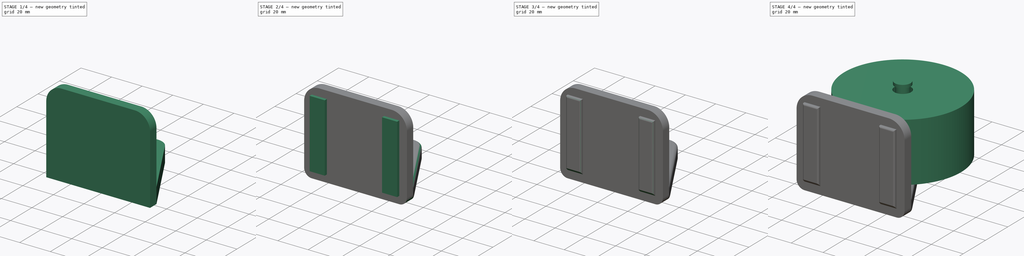
[diagram: build sequence overview — one tinted view per stage of 4, left to right]
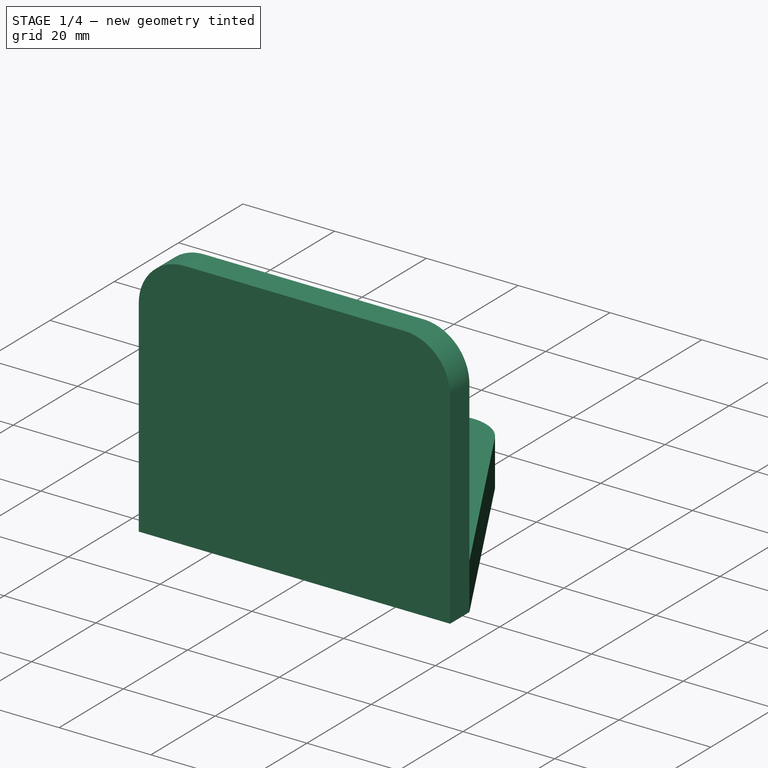
[diagram: stage 1 of 4 — iso view after this stage's code; geometry added in this stage tinted green]
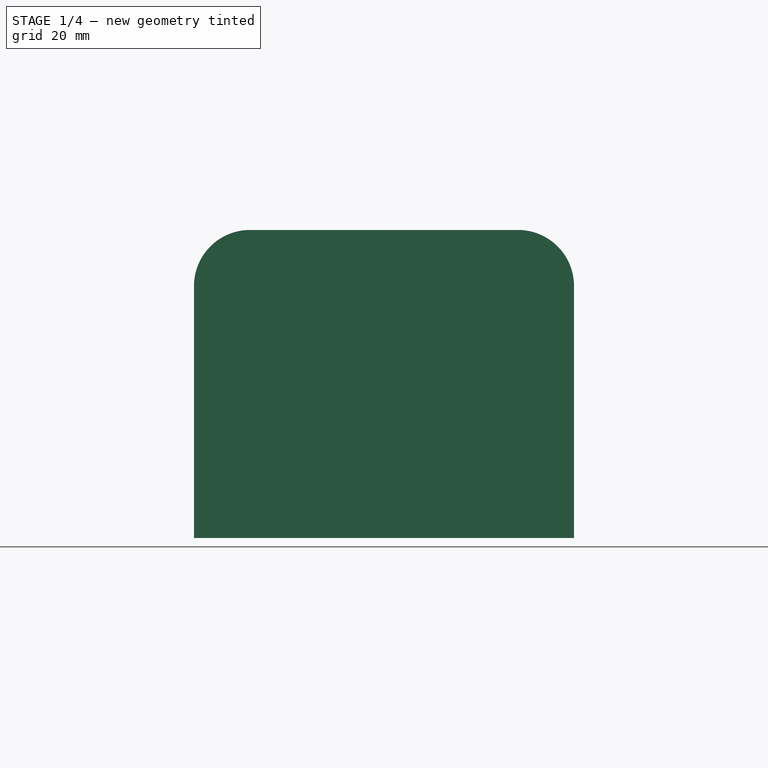
[diagram: stage 1 of 4 — front view after this stage's code; geometry added in this stage tinted green]
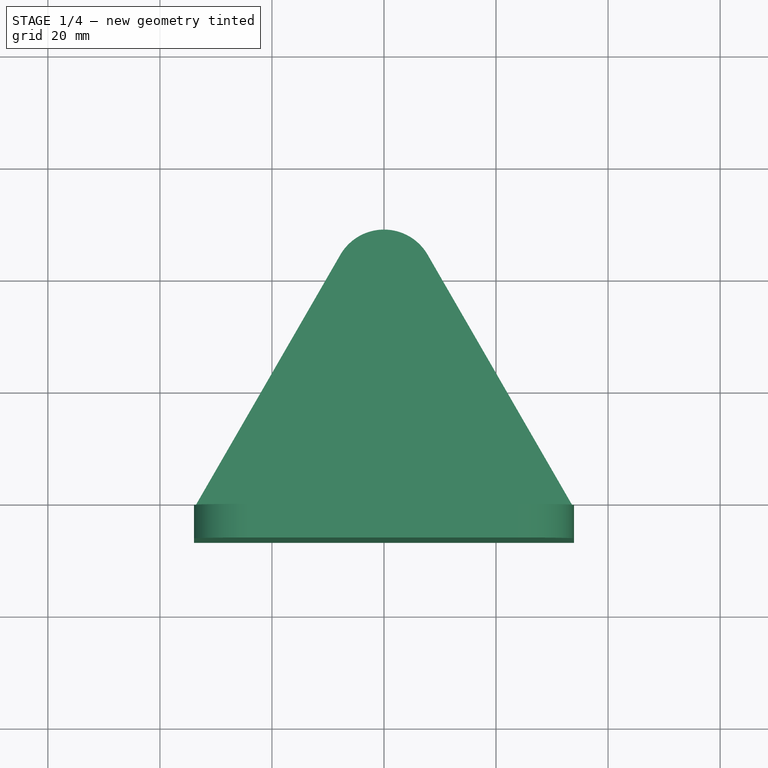
[diagram: stage 1 of 4 — top view after this stage's code; geometry added in this stage tinted green]
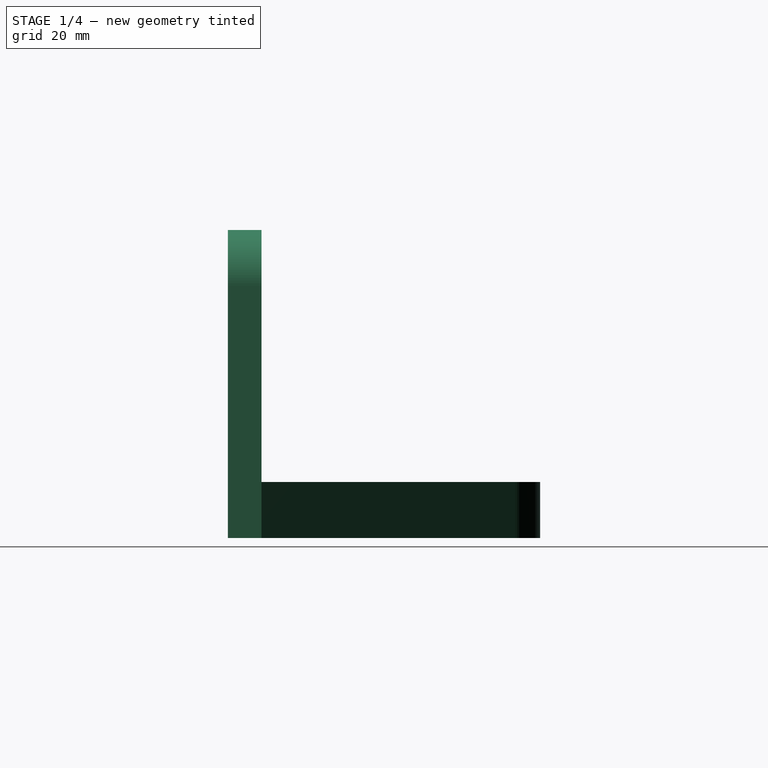
[diagram: stage 1 of 4 — right view after this stage's code; geometry added in this stage tinted green]
FCSTD DOCUMENT  (FreeCAD 0.17RUnknown)
Label: test106_solderholder
License: All rights reserved
LicenseURL: http://en.wikipedia.org/wiki/All_rights_reserved
objects: Sketcher::SketchObject×6, PartDesign::Pad×6, PartDesign::Fillet×4, PartDesign::Body×2, PartDesign::Draft×1
note: 25 computed .brp shape members not serialized (recipe doc carries the construction recipe); baked Part::Feature solids carry a one-line shape summary decoded from their .brp

FEATURE [PartDesign::Body] Body  label="Solder"
  Group = -> [Pad]
  Origin = -> Origin
  Placement = pos=(0,0,2) rot=(0,0,1;0rad)
  Tip = -> Pad
FEATURE [Sketcher::SketchObject] Sketch003
  ExternalGeometry = -> [Sketch001]
  MapMode = 5
  Placement = pos=(0,0,0) rot=(0,1,0;3.14159rad)
  Support = -> [XY_Plane002]
  sketch-geometry (9):
    g0: ArcOfCircle CenterX=0 CenterY=0 CenterZ=0 NormalX=0 NormalY=0 NormalZ=1 AngleXU=0 Radius=9 StartAngle=0.523599 EndAngle=2.61799
    g1: LineSegment StartX=-7.79423 StartY=4.5 StartZ=0 EndX=-33.9192 EndY=-40.75 EndZ=0
    g2: LineSegment StartX=7.79423 StartY=4.5 StartZ=0 EndX=33.9192 EndY=-40.75 EndZ=0
    g3: GeomPoint X=0 Y=4 Z=0
    g4: GeomPoint X=8.159e-09 Y=9 Z=0
    g5: GeomPoint X=0 Y=-36.75 Z=0
    g6: LineSegment StartX=-33.9192 StartY=-46.75 StartZ=0 EndX=33.9192 EndY=-46.75 EndZ=0
    g7: LineSegment StartX=33.9192 StartY=-46.75 StartZ=0 EndX=33.9192 EndY=-40.75 EndZ=0
    g8: LineSegment StartX=-33.9192 StartY=-40.75 StartZ=0 EndX=-33.9192 EndY=-46.75 EndZ=0
  constraints (22):
    c: DistanceY(g3,g4) = 5
    c: Angle(g0) = 2.0944
    c: Tangent(g2,g0)
    c: Tangent(g1,g0)
    c: Coincident(g6,g7)
    c: Horizontal(g6)
    c: Vertical(g7)
    c: Coincident(g2,g7)
    c: Equal(g1,g2)
    c: DistanceY(g2,g5) = 4
    c: Coincident(g2,g0)
    c: PointOnObject(g5,g-4)
    c: PointOnObject(g5,g-2)
    c: Coincident(g0,g-1)
    c: Coincident(g1,g0)
    c: DistanceY(g7,g7) = 6
    c: PointOnObject(g4,g0)
    c: PointOnObject(g3,g-3)
    c: Coincident(g8,g1)
    c: Coincident(g8,g6)
    c: Vertical(g8)
    c: Equal(g8,g7)
FEATURE [PartDesign::Pad] Pad003
  Length = 10
  Length2 = 100
  Profile = -> Sketch003
  Type = 0
FEATURE [Sketcher::SketchObject] Sketch004
  ExternalGeometry = -> [Pad003]
  MapMode = 5
  Support = -> [Pad003]
  sketch-geometry (4):
    g0: LineSegment StartX=-33.9192 StartY=-46.75 StartZ=0 EndX=33.9192 EndY=-46.75 EndZ=0
    g1: LineSegment StartX=33.9192 StartY=-46.75 StartZ=0 EndX=33.9192 EndY=-40.75 EndZ=0
    g2: LineSegment StartX=33.9192 StartY=-40.75 StartZ=0 EndX=-33.9192 EndY=-40.75 EndZ=0
    g3: LineSegment StartX=-33.9192 StartY=-40.75 StartZ=0 EndX=-33.9192 EndY=-46.75 EndZ=0
  constraints (10):
    c: Coincident(g0,g1)
    c: Coincident(g1,g2)
    c: Coincident(g2,g3)
    c: Coincident(g3,g0)
    c: Horizontal(g0)
    c: Horizontal(g2)
    c: Vertical(g1)
    c: Vertical(g3)
    c: Coincident(g0,g-3)
    c: Coincident(g1,g-4)
FEATURE [PartDesign::Pad] Pad004
  BaseFeature = -> Pad003
  Length = 10
  Length2 = 100
  Offset = -5
  Profile = -> Sketch004
  Type = 3
FEATURE [PartDesign::Fillet] Fillet
  Base = -> Pad004 [Edge26,Edge24]
  BaseFeature = -> Pad004
  Radius = 10
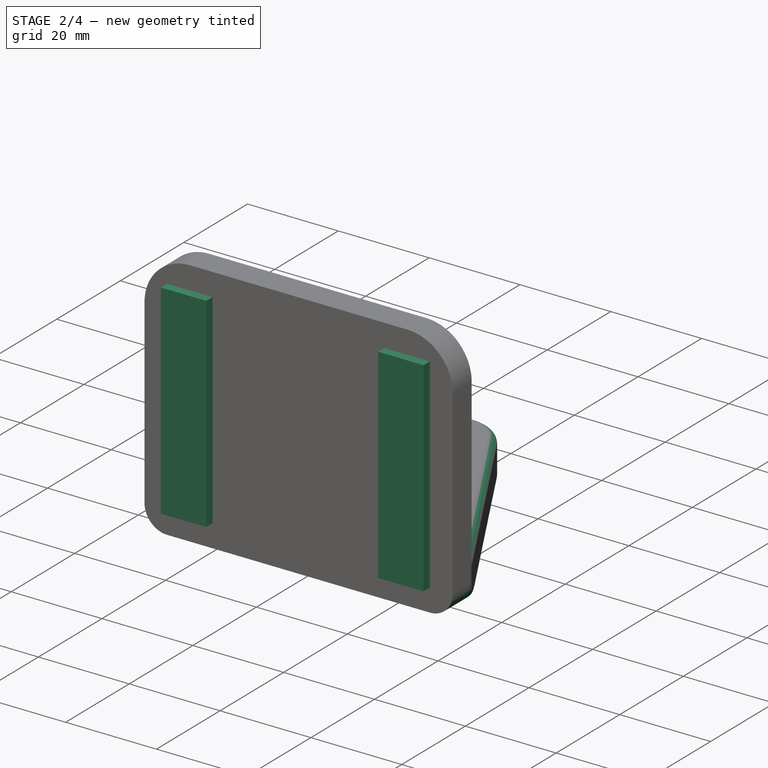
[diagram: stage 2 of 4 — iso view after this stage's code; geometry added in this stage tinted green]
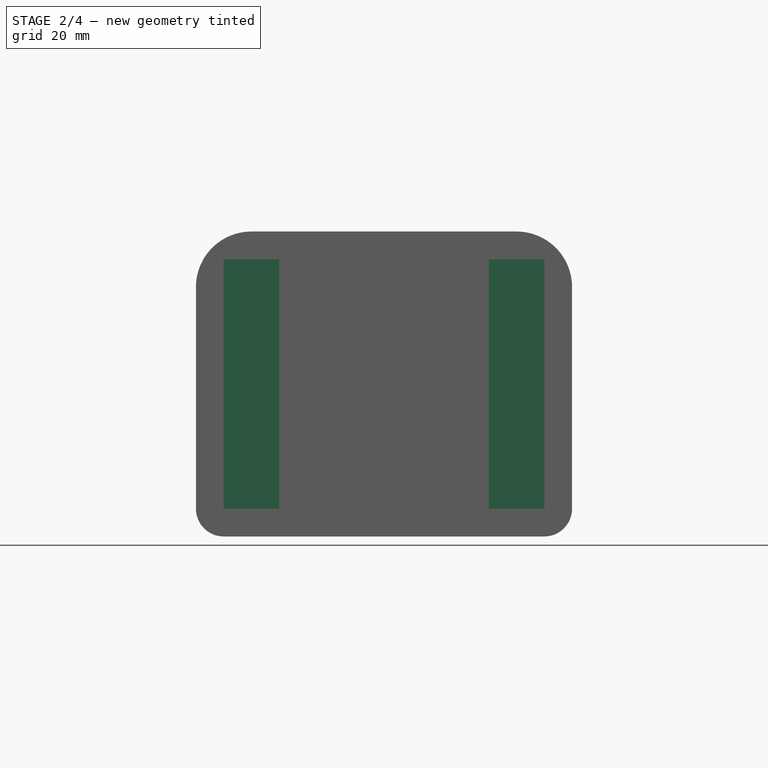
[diagram: stage 2 of 4 — front view after this stage's code; geometry added in this stage tinted green]
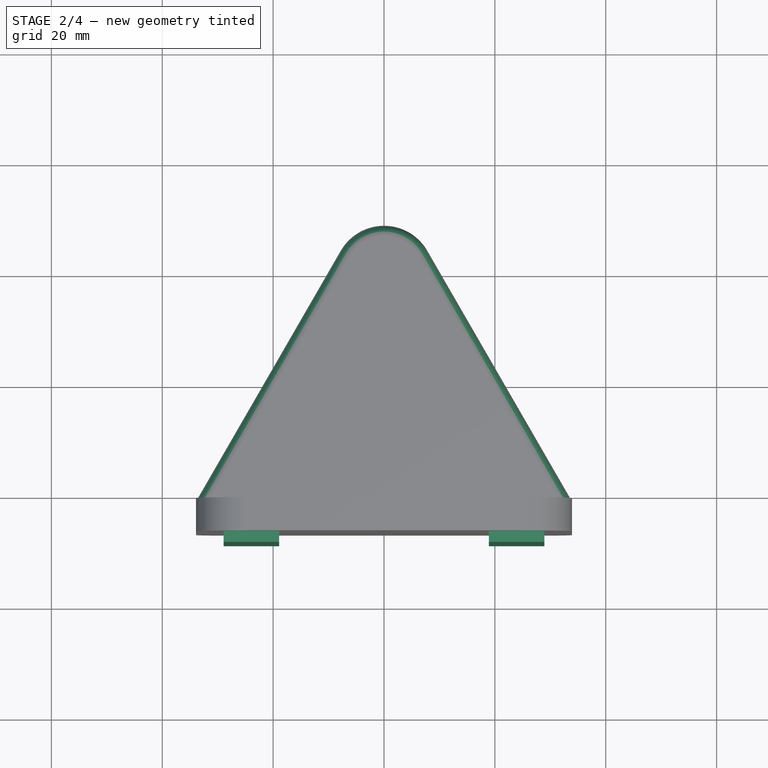
[diagram: stage 2 of 4 — top view after this stage's code; geometry added in this stage tinted green]
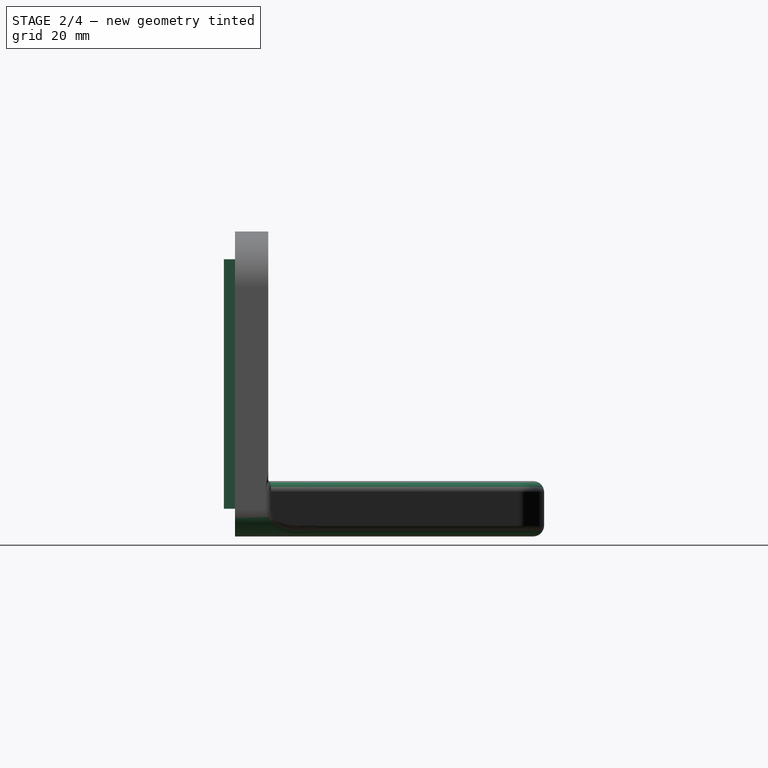
[diagram: stage 2 of 4 — right view after this stage's code; geometry added in this stage tinted green]
FEATURE [PartDesign::Fillet] Fillet001
  Base = -> Fillet [Edge32,Edge22]
  BaseFeature = -> Fillet
  Radius = 5
FEATURE [PartDesign::Fillet] Fillet002
  Base = -> Fillet001 [Edge8,Edge22,Edge23,Edge5,Edge18,Edge19]
  BaseFeature = -> Fillet001
  Radius = 2
FEATURE [Sketcher::SketchObject] Sketch005
  ExternalGeometry = -> [Fillet002]
  MapMode = 5
  Placement = pos=(0,-46.75,0) rot=(1,0,0;1.5708rad)
  Support = -> [Fillet002]
  sketch-geometry (8):
    g0: LineSegment StartX=-28.9192 StartY=-5 StartZ=0 EndX=-18.9192 EndY=-5 EndZ=0
    g1: LineSegment StartX=-18.9192 StartY=-5 StartZ=0 EndX=-18.9192 EndY=40 EndZ=0
    g2: LineSegment StartX=-18.9192 StartY=40 StartZ=0 EndX=-28.9192 EndY=40 EndZ=0
    g3: LineSegment StartX=-28.9192 StartY=40 StartZ=0 EndX=-28.9192 EndY=-5 EndZ=0
    g4: LineSegment StartX=18.9192 StartY=-5 StartZ=0 EndX=28.9192 EndY=-5 EndZ=0
    g5: LineSegment StartX=28.9192 StartY=-5 StartZ=0 EndX=28.9192 EndY=40 EndZ=0
    g6: LineSegment StartX=28.9192 StartY=40 StartZ=0 EndX=18.9192 EndY=40 EndZ=0
    g7: LineSegment StartX=18.9192 StartY=40 StartZ=0 EndX=18.9192 EndY=-5 EndZ=0
  constraints (24):
    c: Coincident(g0,g1)
    c: Coincident(g1,g2)
    c: Coincident(g2,g3)
    c: Coincident(g3,g0)
    c: Horizontal(g0)
    c: Horizontal(g2)
    c: Vertical(g1)
    c: Vertical(g3)
    c: Distance(g1,g-5) = 5
    c: Distance(g0,g-4) = 5
    c: Distance(g0) = 10
    c: DistanceX(g-3,g0) = 5
    c: Coincident(g4,g5)
    c: Coincident(g5,g6)
    c: Coincident(g6,g7)
    c: Coincident(g7,g4)
    c: Horizontal(g4)
    c: Horizontal(g6)
    c: Vertical(g5)
    c: Vertical(g7)
    c: DistanceX(g5,g-6) = 5
    c: DistanceY(g5,g-5) = 5
    c: DistanceY(g-4,g4) = 5
    c: DistanceX(g4,g4) = 10
FEATURE [PartDesign::Pad] Pad005
  BaseFeature = -> Fillet002
  Length = 2
  Length2 = 100
  Profile = -> Sketch005
  Type = 0
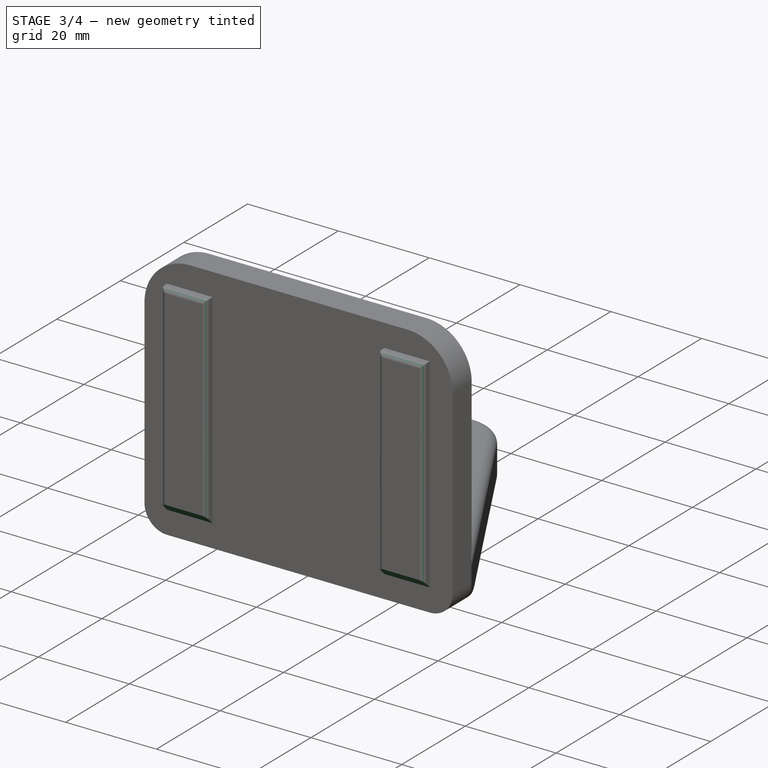
[diagram: stage 3 of 4 — iso view after this stage's code; geometry added in this stage tinted green]
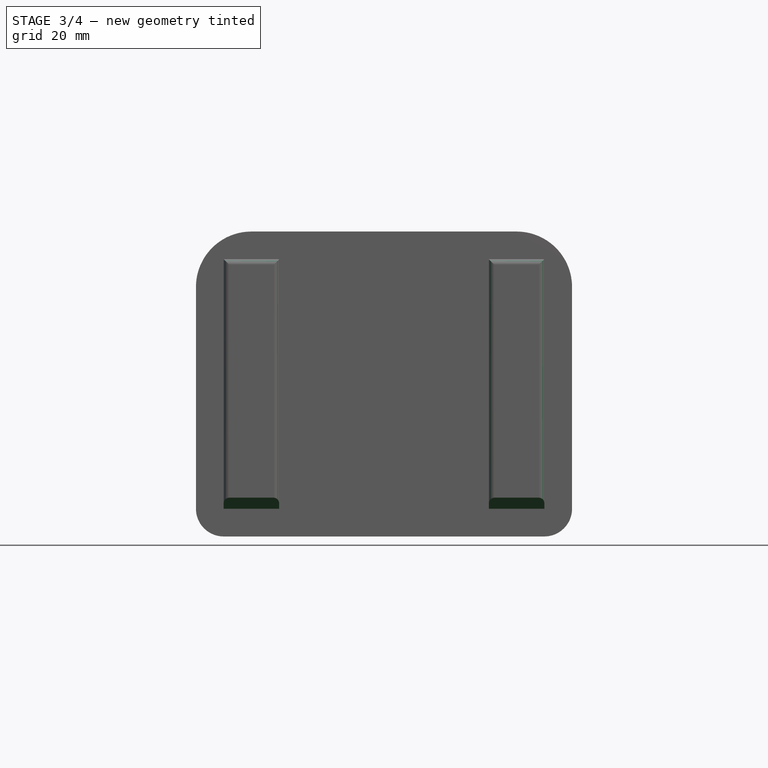
[diagram: stage 3 of 4 — front view after this stage's code; geometry added in this stage tinted green]
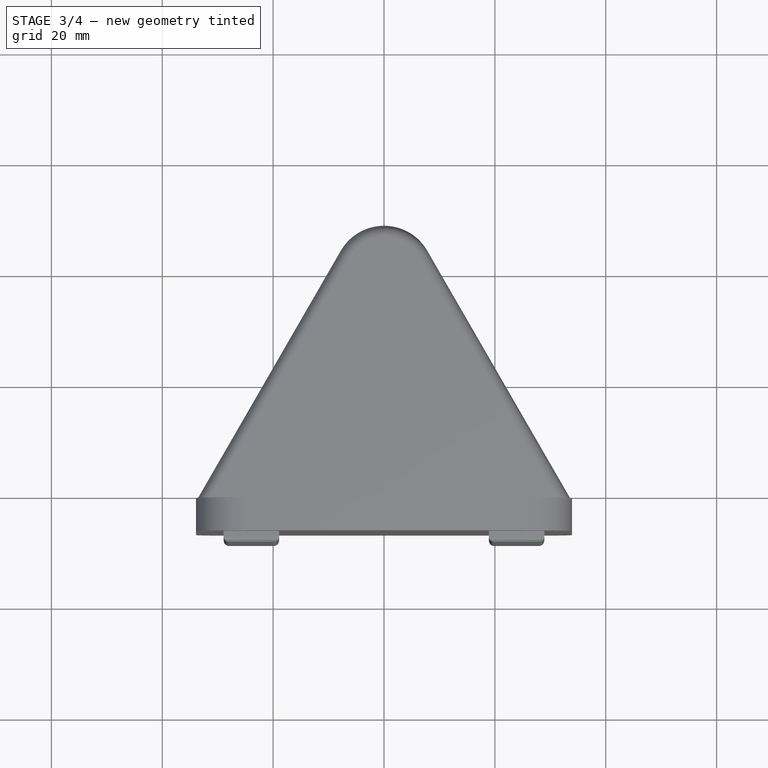
[diagram: stage 3 of 4 — top view after this stage's code; geometry added in this stage tinted green]
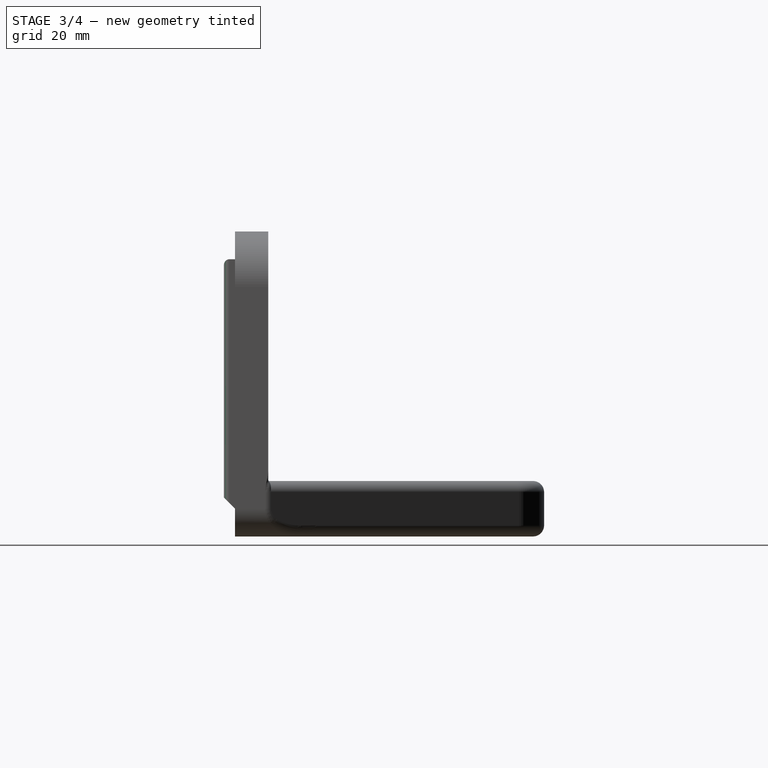
[diagram: stage 3 of 4 — right view after this stage's code; geometry added in this stage tinted green]
FEATURE [PartDesign::Fillet] Fillet003
  Base = -> Pad005 [Edge53,Edge94,Edge58,Edge60,Edge93,Edge65]
  BaseFeature = -> Pad005
  Radius = 1
FEATURE [Sketcher::SketchObject] Sketch
  MapMode = 5
  Support = -> [Fillet003]
  sketch-geometry (1):
    g0: Circle CenterX=0 CenterY=0 CenterZ=0 NormalX=0 NormalY=0 NormalZ=1 AngleXU=0 Radius=4
  constraints (2):
    c: Coincident(g0,g-1)
    c: Radius(g0) = 4
FEATURE [PartDesign::Draft] Draft
  Angle = 45
  Base = -> Fillet003 [Face2,Face13]
  BaseFeature = -> Fillet003
  NeutralPlane = -> Fillet003 [Face4]
  Reversed = true
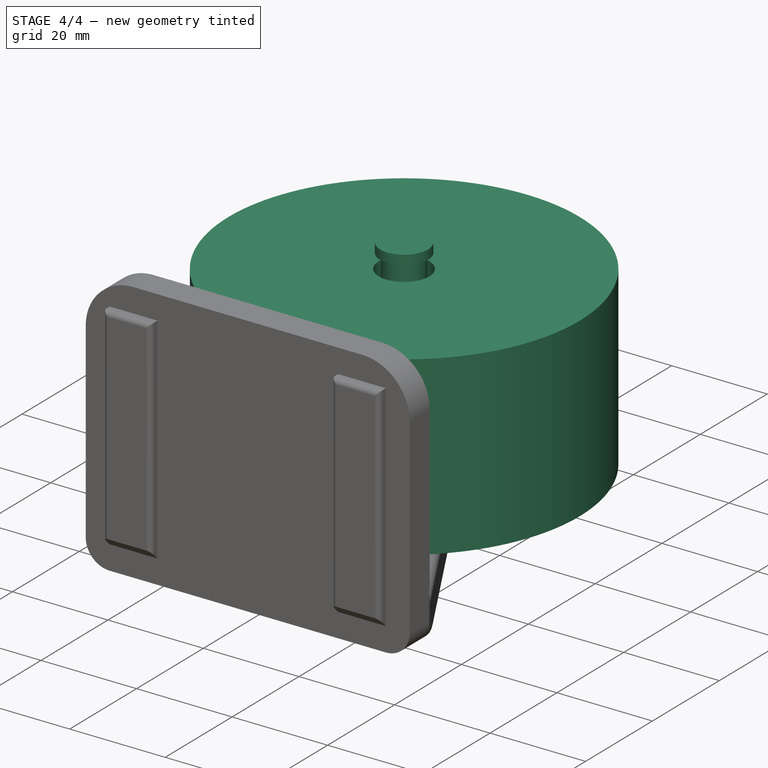
[diagram: stage 4 of 4 — iso view after this stage's code; geometry added in this stage tinted green]
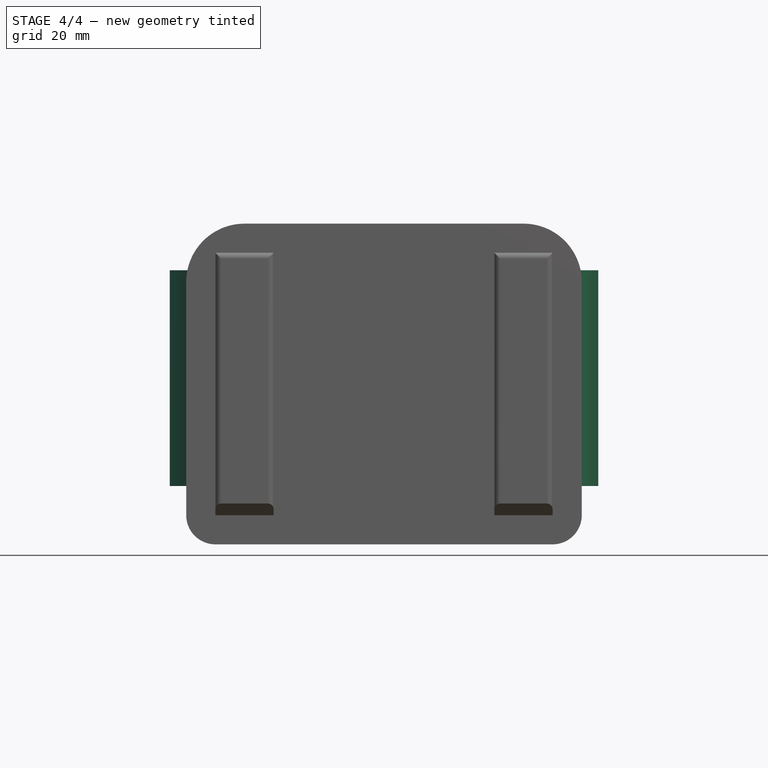
[diagram: stage 4 of 4 — front view after this stage's code; geometry added in this stage tinted green]
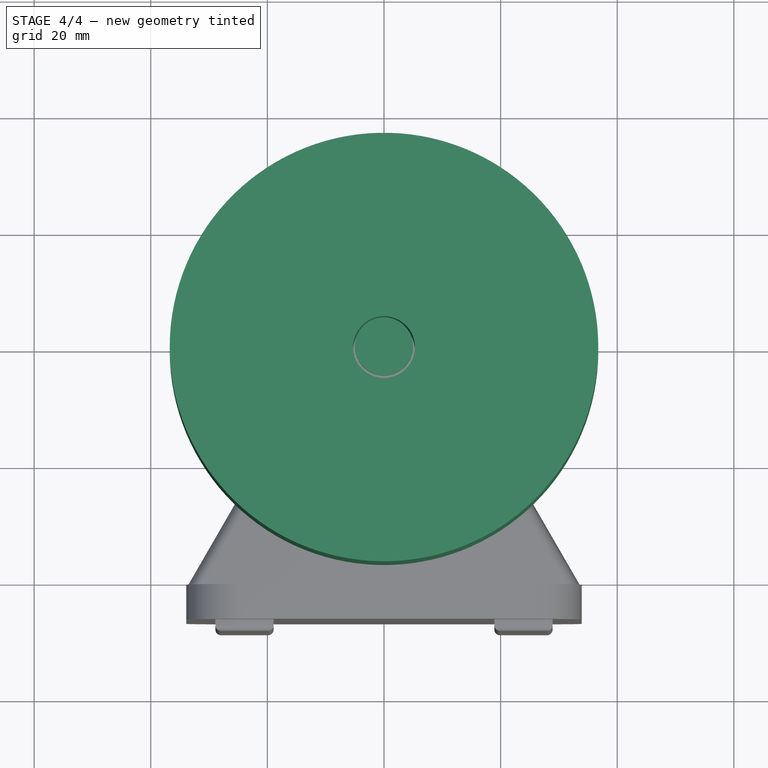
[diagram: stage 4 of 4 — top view after this stage's code; geometry added in this stage tinted green]
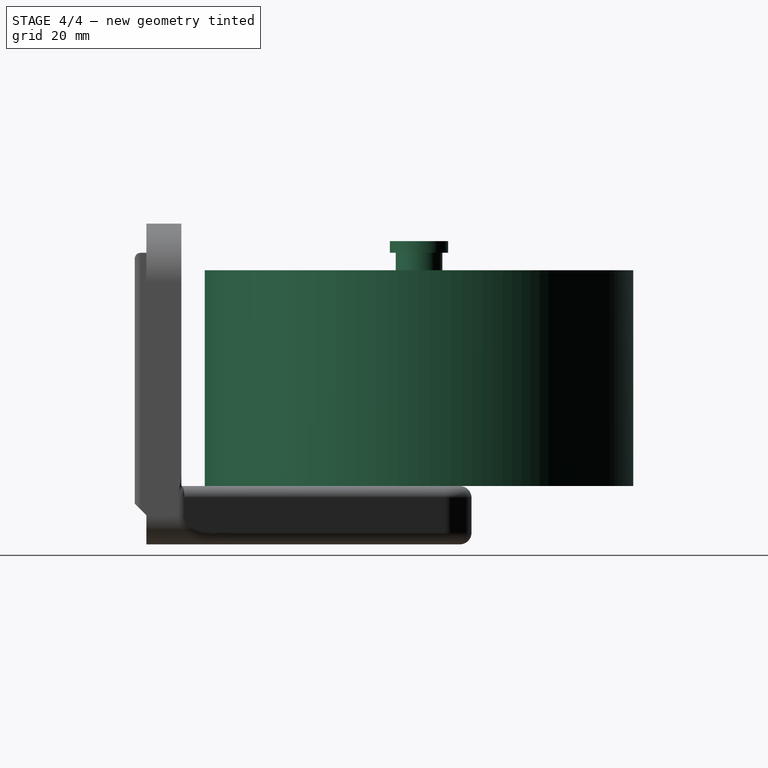
[diagram: stage 4 of 4 — right view after this stage's code; geometry added in this stage tinted green]
FEATURE [Sketcher::SketchObject] Sketch001
  MapMode = 5
  Support = -> [XY_Plane]
  sketch-geometry (2):
    g0: Circle CenterX=0 CenterY=0 CenterZ=0 NormalX=0 NormalY=0 NormalZ=1 AngleXU=0 Radius=36.75
    g1: Circle CenterX=0 CenterY=0 CenterZ=0 NormalX=0 NormalY=0 NormalZ=1 AngleXU=0 Radius=5.3
  constraints (4):
    c: Coincident(g0,g-1)
    c: Radius(g0) = 36.75
    c: Coincident(g1,g-1)
    c: Radius(g1) = 5.3
FEATURE [PartDesign::Pad] Pad
  Length = 37
  Length2 = 100
  Profile = -> Sketch001
  Type = 0
FEATURE [PartDesign::Pad] Pad006
  BaseFeature = -> Draft
  Length = 40
  Length2 = 100
  Profile = -> Sketch
  Type = 0
FEATURE [Sketcher::SketchObject] Sketch006
  ExternalGeometry = -> [Pad006]
  MapMode = 5
  Placement = pos=(0,0,40) rot=(0,0,1;0rad)
  Support = -> [Pad006]
  sketch-geometry (1):
    g0: Circle CenterX=0 CenterY=0 CenterZ=0 NormalX=0 NormalY=0 NormalZ=1 AngleXU=0 Radius=5
  constraints (2):
    c: Coincident(g0,g-1)
    c: Radius(g0) = 5
FEATURE [PartDesign::Pad] Pad007
  BaseFeature = -> Pad006
  Length = 2
  Length2 = 100
  Profile = -> Sketch006
  Type = 0
FEATURE [PartDesign::Body] Body002  label="Holder"
  Group = -> [Sketch003,Pad003,Sketch004,Pad004,Fillet,Fillet001,Fillet002,Sketch005,Pad005,Fillet003,Sketch,Draft,Pad006,Sketch006,Pad007]
  Origin = -> Origin002
  Tip = -> Pad007
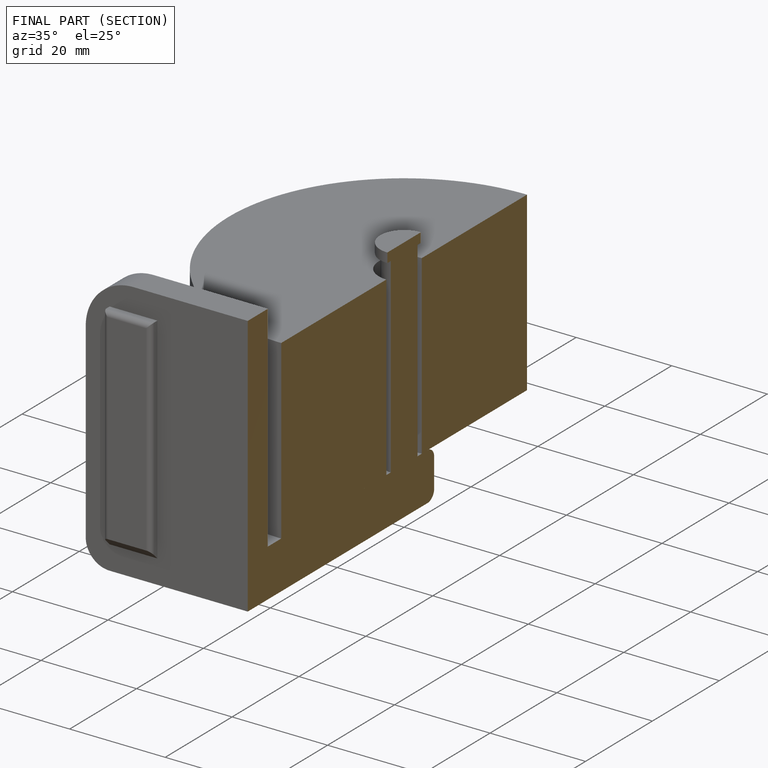
[diagram: finished part — half-section view (interior)]
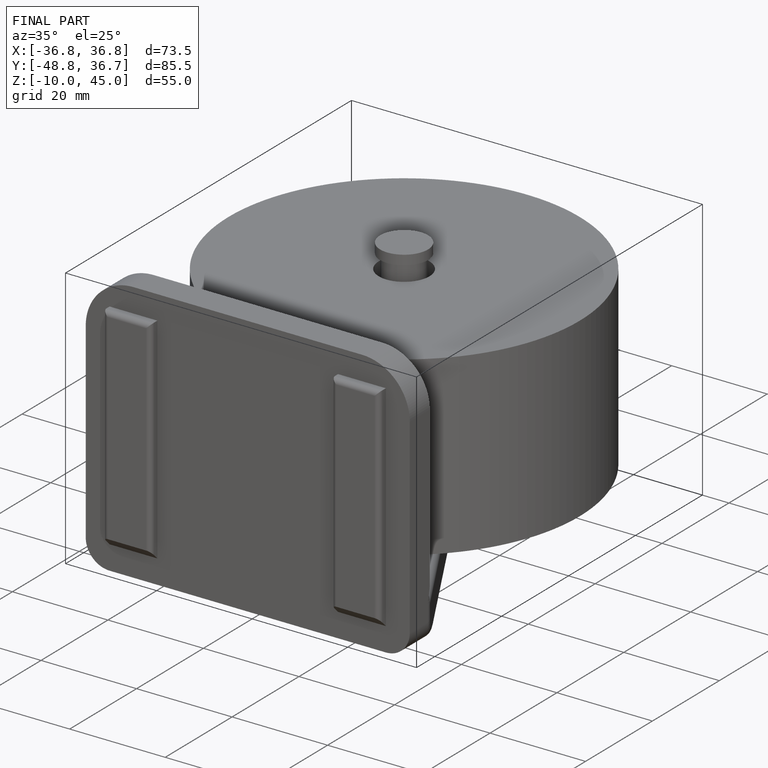
[diagram: finished part — iso view with bounding-box wireframe]
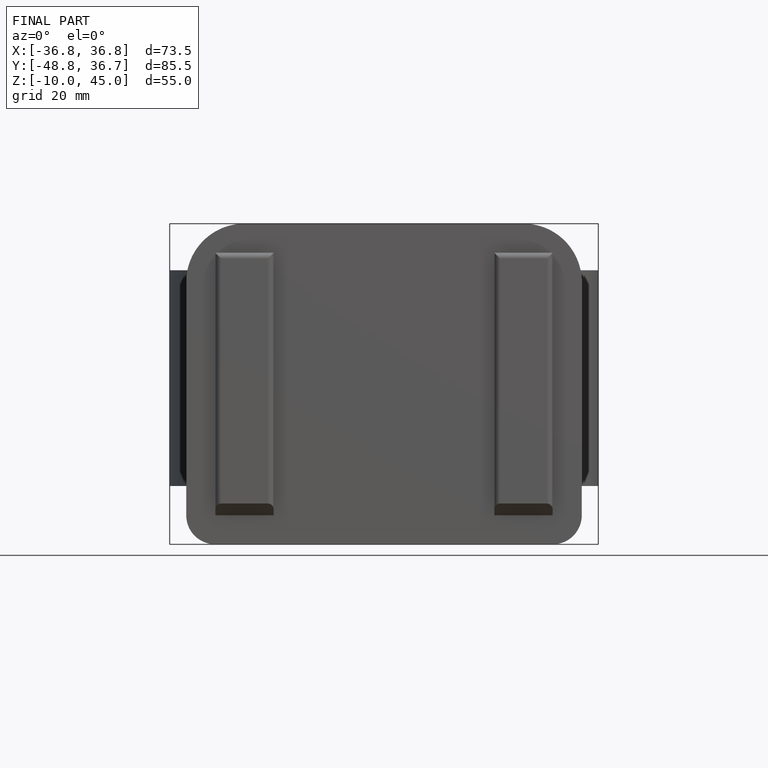
[diagram: finished part — front view with bounding-box wireframe]
